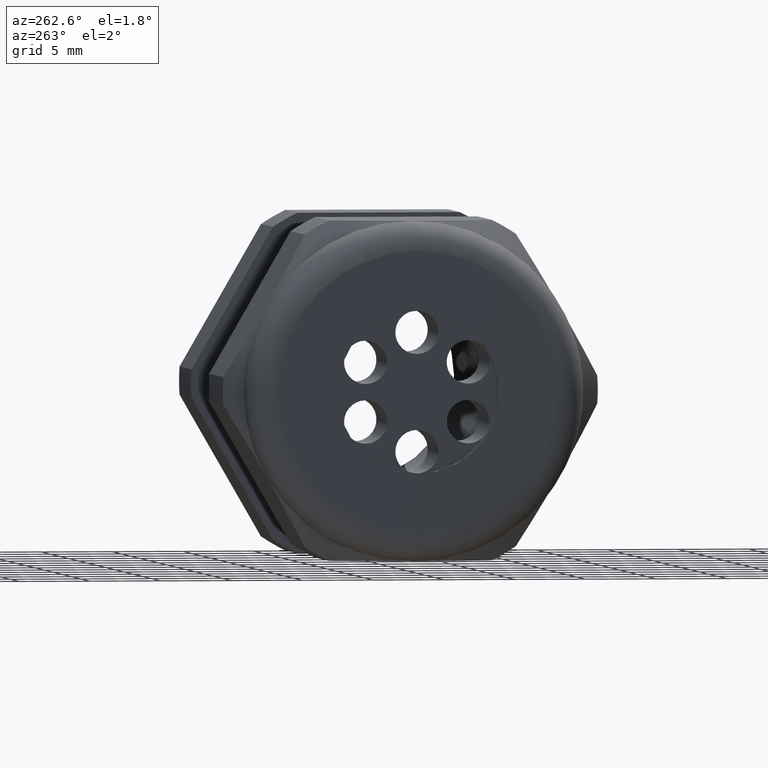
[diagram: clean part render]
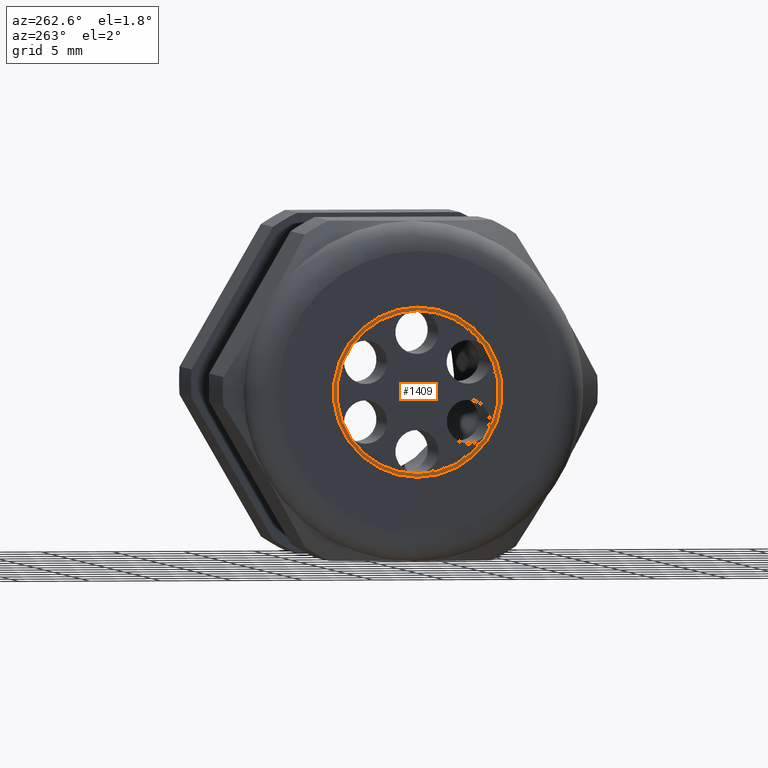
[diagram: same view with one face highlighted and labeled with its STEP entity id]
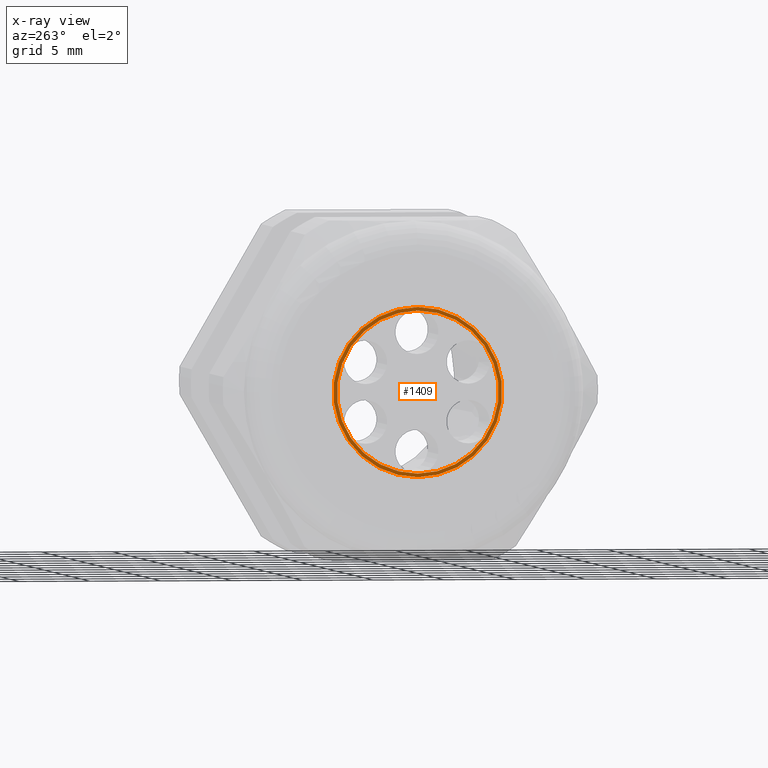
[diagram: x-ray of the same camera — body ghosted, the highlighted face saturated]
A machine part, auxiliary view. The second image highlights one B-rep face of the part: STEP entity #1409.
The next image is the same camera in x-ray: the body ghosted, the highlighted face saturated — about 0% of this face is hidden behind the body in this view.
In plain terms, the highlighted planar face has unit normal (-1, 0, 0).
Its self-contained STEP definition (entity closure, byte-faithful):
#1319 = EDGE_CURVE ( 'NONE', #1321, #1320, #4177, .T. ) ;
#1320 = VERTEX_POINT ( 'NONE', #4173 ) ;
#1321 = VERTEX_POINT ( 'NONE', #4172 ) ;
#1380 = EDGE_CURVE ( 'NONE', #1388, #1392, #4254, .T. ) ;
#1388 = VERTEX_POINT ( 'NONE', #4295 ) ;
#1391 = EDGE_CURVE ( 'NONE', #1392, #1388, #4294, .T. ) ;
#1392 = VERTEX_POINT ( 'NONE', #4289 ) ;
#1409 = ADVANCED_FACE ( 'NONE', ( #4322, #4321 ), #4320, .T. ) ;
#1410 = EDGE_LOOP ( 'NONE', ( #1411, #1413 ) ) ;
#1411 = ORIENTED_EDGE ( 'NONE', *, *, #1412, .F. ) ;
#1412 = EDGE_CURVE ( 'NONE', #1320, #1321, #4315, .T. ) ;
#1413 = ORIENTED_EDGE ( 'NONE', *, *, #1319, .F. ) ;
#1426 = EDGE_LOOP ( 'NONE', ( #1427, #1430 ) ) ;
#1427 = ORIENTED_EDGE ( 'NONE', *, *, #1391, .T. ) ;
#1430 = ORIENTED_EDGE ( 'NONE', *, *, #1380, .T. ) ;
#4117 = CARTESIAN_POINT ( 'NONE',  ( -1.409999999999999900, 0.0000000000000000000, 0.0000000000000000000 ) ) ;
#4172 = CARTESIAN_POINT ( 'NONE',  ( -1.409999999999999900, 2.755455298081544500E-017, -0.2249999999999999800 ) ) ;
#4173 = CARTESIAN_POINT ( 'NONE',  ( -1.409999999999999900, 0.0000000000000000000, 0.2249999999999999800 ) ) ;
#4174 = DIRECTION ( 'NONE',  ( 0.0000000000000000000, 0.0000000000000000000, 1.000000000000000000 ) ) ;
#4175 = DIRECTION ( 'NONE',  ( -1.000000000000000000, 0.0000000000000000000, 0.0000000000000000000 ) ) ;
#4176 = AXIS2_PLACEMENT_3D ( 'NONE', #4117, #4175, #4174 ) ;
#4177 = CIRCLE ( 'NONE', #4176, 0.2249999999999999800 ) ;
#4250 = DIRECTION ( 'NONE',  ( 0.0000000000000000000, 0.0000000000000000000, 1.000000000000000000 ) ) ;
#4251 = DIRECTION ( 'NONE',  ( -1.000000000000000000, 0.0000000000000000000, 0.0000000000000000000 ) ) ;
#4252 = CARTESIAN_POINT ( 'NONE',  ( -1.409999999999999900, 0.0000000000000000000, 0.0000000000000000000 ) ) ;
#4253 = AXIS2_PLACEMENT_3D ( 'NONE', #4252, #4251, #4250 ) ;
#4254 = CIRCLE ( 'NONE', #4253, 0.2349999999999999900 ) ;
#4289 = CARTESIAN_POINT ( 'NONE',  ( -1.409999999999999900, 0.0000000000000000000, 0.2349999999999999900 ) ) ;
#4290 = DIRECTION ( 'NONE',  ( 0.0000000000000000000, 0.0000000000000000000, 1.000000000000000000 ) ) ;
#4291 = DIRECTION ( 'NONE',  ( -1.000000000000000000, 0.0000000000000000000, 0.0000000000000000000 ) ) ;
#4292 = CARTESIAN_POINT ( 'NONE',  ( -1.409999999999999900, 0.0000000000000000000, 0.0000000000000000000 ) ) ;
#4293 = AXIS2_PLACEMENT_3D ( 'NONE', #4292, #4291, #4290 ) ;
#4294 = CIRCLE ( 'NONE', #4293, 0.2349999999999999900 ) ;
#4295 = CARTESIAN_POINT ( 'NONE',  ( -1.409999999999999900, 2.877919977996279800E-017, -0.2349999999999999900 ) ) ;
#4311 = DIRECTION ( 'NONE',  ( 0.0000000000000000000, 0.0000000000000000000, 1.000000000000000000 ) ) ;
#4312 = DIRECTION ( 'NONE',  ( -1.000000000000000000, 0.0000000000000000000, 0.0000000000000000000 ) ) ;
#4313 = CARTESIAN_POINT ( 'NONE',  ( -1.409999999999999900, 0.0000000000000000000, 0.0000000000000000000 ) ) ;
#4314 = AXIS2_PLACEMENT_3D ( 'NONE', #4313, #4312, #4311 ) ;
#4315 = CIRCLE ( 'NONE', #4314, 0.2249999999999999800 ) ;
#4316 = DIRECTION ( 'NONE',  ( 0.0000000000000000000, 0.0000000000000000000, 1.000000000000000000 ) ) ;
#4317 = DIRECTION ( 'NONE',  ( -1.000000000000000000, 0.0000000000000000000, 0.0000000000000000000 ) ) ;
#4318 = CARTESIAN_POINT ( 'NONE',  ( -1.409999999999999900, 0.0000000000000000000, 0.0000000000000000000 ) ) ;
#4319 = AXIS2_PLACEMENT_3D ( 'NONE', #4318, #4317, #4316 ) ;
#4320 = PLANE ( 'NONE',  #4319 ) ;
#4321 = FACE_OUTER_BOUND ( 'NONE', #1426, .T. ) ;
#4322 = FACE_BOUND ( 'NONE', #1410, .T. ) ;